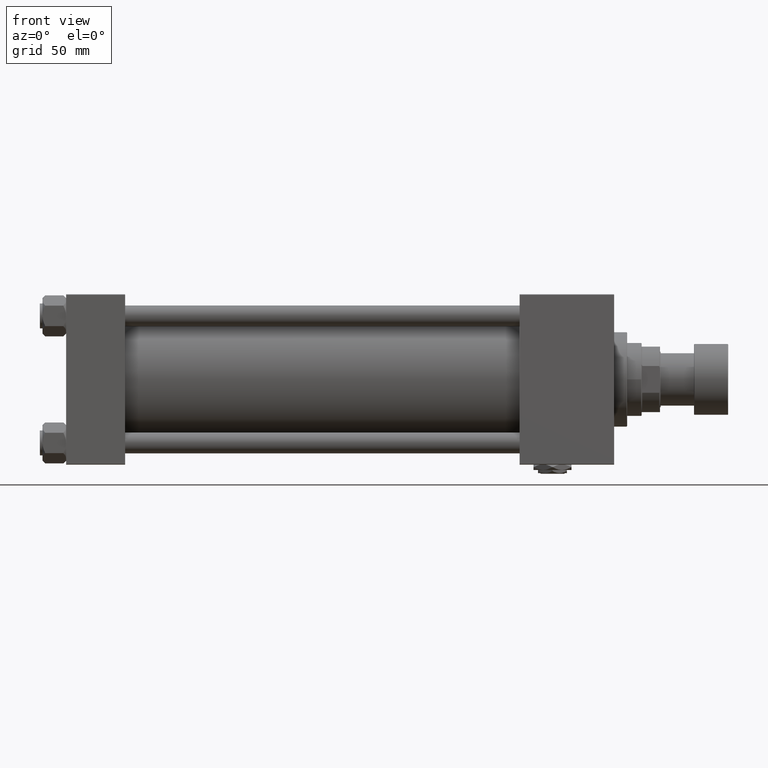
[diagram: clean part render]
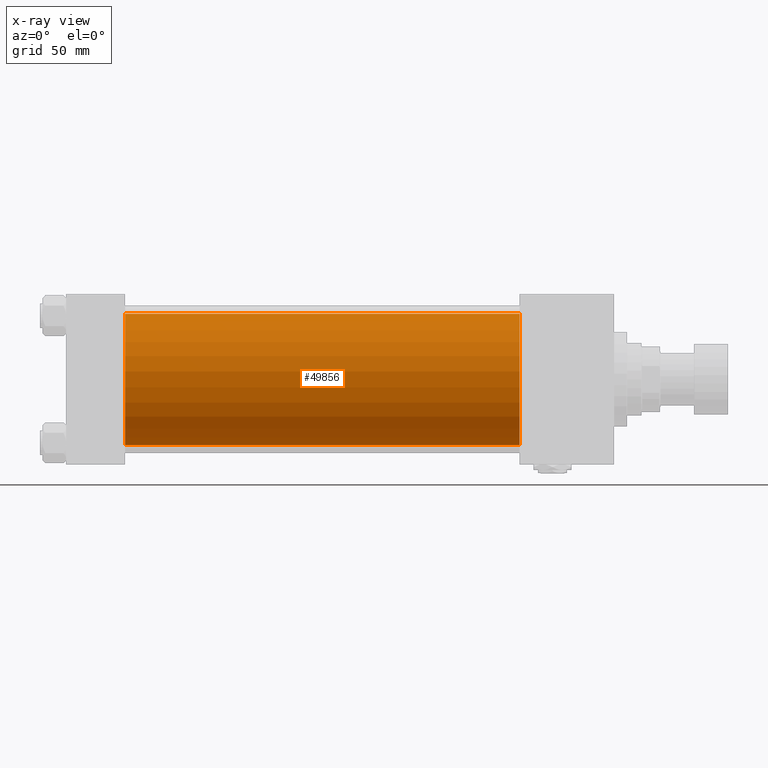
[diagram: x-ray — body ghosted, one internal face saturated and labeled with its STEP entity id]
A machine part, front view, then the same camera in x-ray: the body is ghosted and one INTERNAL B-rep face — a face not visible from any outside direction — is saturated and labeled: STEP entity #49856.
In plain terms, the highlighted cylindrical surface (partial cylindrical patch) has radius 50 mm, axis along (-1, -0, -0).
Its self-contained STEP definition (entity closure, byte-faithful):
#3784 = CARTESIAN_POINT ( 'NONE',  ( 346.0000000000000000, 3.521148781771555838E-15, -50.00000000000000000 ) ) ;
#5123 = VECTOR ( 'NONE', #15070, 1000.000000000000000 ) ;
#6251 = EDGE_CURVE ( 'NONE', #35252, #17301, #27703, .T. ) ;
#7448 = AXIS2_PLACEMENT_3D ( 'NONE', #50774, #22855, #43244 ) ;
#7959 = VERTEX_POINT ( 'NONE', #28724 ) ;
#10387 = CARTESIAN_POINT ( 'NONE',  ( 346.0000000000000000, -2.602085213965210642E-15, 0.000000000000000000 ) ) ;
#11671 = DIRECTION ( 'NONE',  ( -1.000000000000000000, -0.000000000000000000, -0.000000000000000000 ) ) ;
#12417 = VERTEX_POINT ( 'NONE', #22635 ) ;
#15070 = DIRECTION ( 'NONE',  ( -1.000000000000000000, -0.000000000000000000, -0.000000000000000000 ) ) ;
#15696 = LINE ( 'NONE', #32336, #31137 ) ;
#15787 = AXIS2_PLACEMENT_3D ( 'NONE', #20415, #28196, #44556 ) ;
#16190 = DIRECTION ( 'NONE',  ( 1.000000000000000000, 0.000000000000000000, 0.000000000000000000 ) ) ;
#17301 = VERTEX_POINT ( 'NONE', #28320 ) ;
#18288 = CYLINDRICAL_SURFACE ( 'NONE', #7448, 50.00000000000000000 ) ;
#20415 = CARTESIAN_POINT ( 'NONE',  ( 45.00000000000000000, -2.602085213965210642E-15, 0.000000000000000000 ) ) ;
#22635 = CARTESIAN_POINT ( 'NONE',  ( 346.0000000000000000, -2.602085213965210642E-15, 50.00000000000000000 ) ) ;
#22855 = DIRECTION ( 'NONE',  ( -1.000000000000000000, -0.000000000000000000, -0.000000000000000000 ) ) ;
#27703 = LINE ( 'NONE', #47011, #5123 ) ;
#28196 = DIRECTION ( 'NONE',  ( 1.000000000000000000, 0.000000000000000000, 0.000000000000000000 ) ) ;
#28320 = CARTESIAN_POINT ( 'NONE',  ( 45.00000000000000000, 3.521148781771555838E-15, -50.00000000000000000 ) ) ;
#28724 = CARTESIAN_POINT ( 'NONE',  ( 45.00000000000000000, -2.602085213965210642E-15, 50.00000000000000000 ) ) ;
#30841 = EDGE_LOOP ( 'NONE', ( #50986, #43261, #47869, #39100 ) ) ;
#31137 = VECTOR ( 'NONE', #11671, 1000.000000000000000 ) ;
#32336 = CARTESIAN_POINT ( 'NONE',  ( 346.0000000000000000, -2.602085213965210642E-15, 50.00000000000000000 ) ) ;
#33077 = EDGE_CURVE ( 'NONE', #12417, #7959, #15696, .T. ) ;
#35252 = VERTEX_POINT ( 'NONE', #3784 ) ;
#35666 = EDGE_CURVE ( 'NONE', #12417, #35252, #51840, .T. ) ;
#39100 = ORIENTED_EDGE ( 'NONE', *, *, #33077, .F. ) ;
#39481 = EDGE_CURVE ( 'NONE', #7959, #17301, #39792, .T. ) ;
#39792 = CIRCLE ( 'NONE', #15787, 50.00000000000000000 ) ;
#39831 = AXIS2_PLACEMENT_3D ( 'NONE', #10387, #16190, #51743 ) ;
#42174 = FACE_OUTER_BOUND ( 'NONE', #30841, .T. ) ;
#43244 = DIRECTION ( 'NONE',  ( 0.000000000000000000, 0.000000000000000000, 1.000000000000000000 ) ) ;
#43261 = ORIENTED_EDGE ( 'NONE', *, *, #6251, .T. ) ;
#44556 = DIRECTION ( 'NONE',  ( 0.000000000000000000, 0.000000000000000000, -1.000000000000000000 ) ) ;
#47011 = CARTESIAN_POINT ( 'NONE',  ( 346.0000000000000000, 3.521148781771555838E-15, -50.00000000000000000 ) ) ;
#47869 = ORIENTED_EDGE ( 'NONE', *, *, #39481, .F. ) ;
#49856 = ADVANCED_FACE ( 'NONE', ( #42174 ), #18288, .F. ) ;
#50774 = CARTESIAN_POINT ( 'NONE',  ( 346.0000000000000000, -2.602085213965210642E-15, 0.000000000000000000 ) ) ;
#50986 = ORIENTED_EDGE ( 'NONE', *, *, #35666, .T. ) ;
#51743 = DIRECTION ( 'NONE',  ( 0.000000000000000000, 0.000000000000000000, -1.000000000000000000 ) ) ;
#51840 = CIRCLE ( 'NONE', #39831, 50.00000000000000000 ) ;